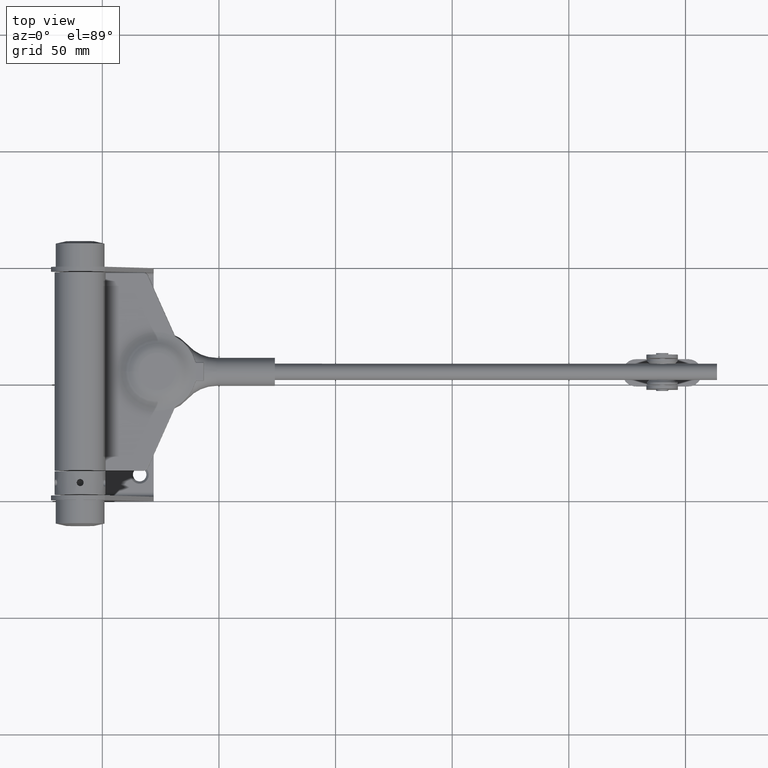
[diagram: clean part render]
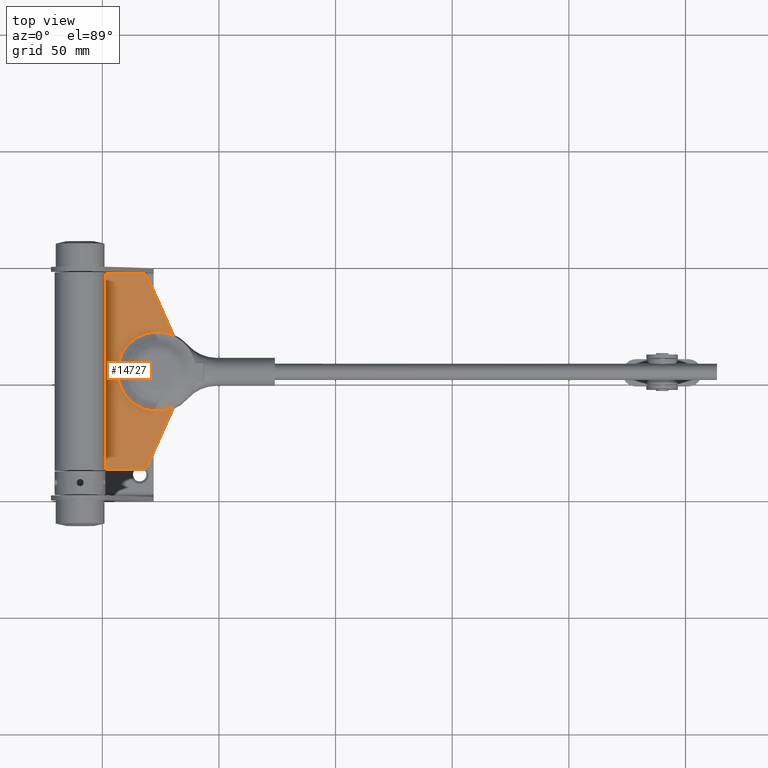
[diagram: same view with one face highlighted and labeled with its STEP entity id]
A machine part, top view. The second image highlights one B-rep face of the part: STEP entity #14727.
In plain terms, the highlighted planar face has unit normal (0, -0, -1).
Its self-contained STEP definition (entity closure, byte-faithful):
#87 = VERTEX_POINT ( 'NONE', #20719 ) ;
#1045 = AXIS2_PLACEMENT_3D ( 'NONE', #13610, #6369, #17702 ) ;
#1060 = CARTESIAN_POINT ( 'NONE',  ( -0.9999999999999940048, -15.46086696712055719, 40.06835147859833057 ) ) ;
#1087 = VERTEX_POINT ( 'NONE', #13590 ) ;
#1102 = CIRCLE ( 'NONE', #20969, 1.500000000000008216 ) ;
#1170 = DIRECTION ( 'NONE',  ( 0.000000000000000000, 0.000000000000000000, -1.000000000000000000 ) ) ;
#1296 = VERTEX_POINT ( 'NONE', #1060 ) ;
#1392 = VERTEX_POINT ( 'NONE', #8686 ) ;
#2375 = DIRECTION ( 'NONE',  ( 2.465190328815646565E-32, -2.070759876205143378E-30, 1.000000000000000000 ) ) ;
#2438 = LINE ( 'NONE', #18719, #6137 ) ;
#2527 = CIRCLE ( 'NONE', #22626, 1.500000000000008216 ) ;
#2885 = EDGE_CURVE ( 'NONE', #1296, #16686, #9705, .T. ) ;
#3300 = CARTESIAN_POINT ( 'NONE',  ( -1.000000000000000888, -16.56083667958944972, 42.31336075066202795 ) ) ;
#3467 = DIRECTION ( 'NONE',  ( 0.000000000000000000, 0.000000000000000000, -1.000000000000000000 ) ) ;
#3677 = ORIENTED_EDGE ( 'NONE', *, *, #21957, .T. ) ;
#3819 = VERTEX_POINT ( 'NONE', #16738 ) ;
#4432 = EDGE_LOOP ( 'NONE', ( #19809, #10465, #9906, #11832, #15796, #22478, #16870, #22665, #19387, #3677 ) ) ;
#4441 = PLANE ( 'NONE',  #1045 ) ;
#5785 = CARTESIAN_POINT ( 'NONE',  ( -1.000000000000000888, -5.221613387282787677, 44.65433429618172312 ) ) ;
#6137 = VECTOR ( 'NONE', #2375, 1000.000000000000000 ) ;
#6151 = CARTESIAN_POINT ( 'NONE',  ( -1.000000000000091038, -41.11331553386013837, 28.57339928453205147 ) ) ;
#6369 = DIRECTION ( 'NONE',  ( 1.000000000000000000, 3.769267568384171061E-30, -2.465190328815646565E-32 ) ) ;
#6702 = LINE ( 'NONE', #5785, #10416 ) ;
#7292 = EDGE_CURVE ( 'NONE', #3819, #1087, #2438, .T. ) ;
#7588 = EDGE_CURVE ( 'NONE', #16686, #8538, #10166, .T. ) ;
#7914 = EDGE_CURVE ( 'NONE', #14262, #1392, #6702, .T. ) ;
#8068 = CARTESIAN_POINT ( 'NONE',  ( -1.000000000000000888, 15.53864412315589760, 40.03188702134305288 ) ) ;
#8211 = DIRECTION ( 'NONE',  ( 0.000000000000000000, 1.387778780781438102E-14, -1.000000000000000000 ) ) ;
#8538 = VERTEX_POINT ( 'NONE', #8068 ) ;
#8686 = CARTESIAN_POINT ( 'NONE',  ( -1.000000000000000888, -15.53864412315589227, 40.03188702134303867 ) ) ;
#8707 = DIRECTION ( 'NONE',  ( 1.000000000000000000, 3.769267568384171061E-30, -2.465190328815646565E-32 ) ) ;
#9502 = CARTESIAN_POINT ( 'NONE',  ( -1.000000000000000888, 41.99999999999999289, 10.95445115010337034 ) ) ;
#9615 = VECTOR ( 'NONE', #15096, 1000.000000000000000 ) ;
#9705 = CIRCLE ( 'NONE', #23385, 17.00000000000011369 ) ;
#9906 = ORIENTED_EDGE ( 'NONE', *, *, #18786, .T. ) ;
#9972 = DIRECTION ( 'NONE',  ( 3.432777532875804981E-30, 0.9125894917275187979, -0.4088770225734248420 ) ) ;
#10166 = CIRCLE ( 'NONE', #16091, 2.500000000000015987 ) ;
#10416 = VECTOR ( 'NONE', #10995, 999.9999999999997726 ) ;
#10465 = ORIENTED_EDGE ( 'NONE', *, *, #7292, .T. ) ;
#10619 = LINE ( 'NONE', #20900, #13456 ) ;
#10995 = DIRECTION ( 'NONE',  ( 3.426614557053765826E-30, 0.9125894917275187979, 0.4088770225734248420 ) ) ;
#11733 = CARTESIAN_POINT ( 'NONE',  ( -1.000000000000000888, 42.49999999999999289, 10.95445115010337034 ) ) ;
#11832 = ORIENTED_EDGE ( 'NONE', *, *, #7914, .T. ) ;
#11841 = VERTEX_POINT ( 'NONE', #18079 ) ;
#13084 = EDGE_CURVE ( 'NONE', #8538, #87, #10619, .T. ) ;
#13146 = DIRECTION ( 'NONE',  ( -2.465190328815646565E-32, 2.070759876205143378E-30, -1.000000000000000000 ) ) ;
#13456 = VECTOR ( 'NONE', #9972, 999.9999999999997726 ) ;
#13590 = CARTESIAN_POINT ( 'NONE',  ( -1.000000000000007772, -42.00000000000000000, 27.20451504694077016 ) ) ;
#13610 = CARTESIAN_POINT ( 'NONE',  ( -1.000000000000091038, 1.214306433183764966E-14, 33.00000000000019185 ) ) ;
#13873 = VECTOR ( 'NONE', #13146, 1000.000000000000000 ) ;
#13896 = CIRCLE ( 'NONE', #22349, 2.500000000000015987 ) ;
#14262 = VERTEX_POINT ( 'NONE', #6151 ) ;
#14378 = DIRECTION ( 'NONE',  ( 1.000000000000000000, 3.769267568384171061E-30, -2.465190328815646565E-32 ) ) ;
#14727 = ADVANCED_FACE ( 'NONE', ( #17131 ), #4441, .F. ) ;
#14861 = CARTESIAN_POINT ( 'NONE',  ( -1.000000000000007772, -40.50000000000000000, 27.20451504694077016 ) ) ;
#15096 = DIRECTION ( 'NONE',  ( -3.769267568384192781E-30, -1.000000000000000000, 2.070759876205157040E-30 ) ) ;
#15443 = DIRECTION ( 'NONE',  ( 1.000000000000000000, 3.769267568384171061E-30, -2.465190328815646565E-32 ) ) ;
#15615 = LINE ( 'NONE', #11733, #9615 ) ;
#15796 = ORIENTED_EDGE ( 'NONE', *, *, #21345, .T. ) ;
#16091 = AXIS2_PLACEMENT_3D ( 'NONE', #21812, #14378, #3467 ) ;
#16350 = VERTEX_POINT ( 'NONE', #19404 ) ;
#16620 = DIRECTION ( 'NONE',  ( -1.000000000000000000, -3.769267568384171061E-30, 2.465190328815646565E-32 ) ) ;
#16686 = VERTEX_POINT ( 'NONE', #23277 ) ;
#16738 = CARTESIAN_POINT ( 'NONE',  ( -1.000000000000000888, -42.00000000000000711, 10.95445115010337034 ) ) ;
#16870 = ORIENTED_EDGE ( 'NONE', *, *, #7588, .T. ) ;
#17131 = FACE_OUTER_BOUND ( 'NONE', #4432, .T. ) ;
#17702 = DIRECTION ( 'NONE',  ( -2.465190328815646565E-32, 2.070759876205143378E-30, -1.000000000000000000 ) ) ;
#18079 = CARTESIAN_POINT ( 'NONE',  ( -1.000000000000000888, 41.99999999999999289, 10.95445115010337034 ) ) ;
#18168 = LINE ( 'NONE', #9502, #13873 ) ;
#18531 = DIRECTION ( 'NONE',  ( 0.000000000000000000, 4.625929269271460079E-15, -1.000000000000000000 ) ) ;
#18719 = CARTESIAN_POINT ( 'NONE',  ( -1.000000000000091038, -42.00000000000000000, 33.00000000000019185 ) ) ;
#18786 = EDGE_CURVE ( 'NONE', #1087, #14262, #1102, .T. ) ;
#18838 = CARTESIAN_POINT ( 'NONE',  ( -1.000000000000007772, 40.50000000000000000, 27.20451504694071687 ) ) ;
#18930 = EDGE_CURVE ( 'NONE', #87, #16350, #2527, .T. ) ;
#18998 = DIRECTION ( 'NONE',  ( -1.000000000000000000, -3.769267568384171061E-30, 2.465190328815646565E-32 ) ) ;
#19387 = ORIENTED_EDGE ( 'NONE', *, *, #18930, .T. ) ;
#19404 = CARTESIAN_POINT ( 'NONE',  ( -1.000000000000007772, 42.00000000000000000, 27.20451504694071687 ) ) ;
#19809 = ORIENTED_EDGE ( 'NONE', *, *, #21736, .T. ) ;
#20719 = CARTESIAN_POINT ( 'NONE',  ( -1.000000000000091038, 41.11331553386012416, 28.57339928453199818 ) ) ;
#20900 = CARTESIAN_POINT ( 'NONE',  ( -1.000000000000000888, 5.221613387282797447, 44.65433429618172312 ) ) ;
#20952 = DIRECTION ( 'NONE',  ( 0.000000000000000000, 2.084535939807347228E-30, -1.000000000000000000 ) ) ;
#20969 = AXIS2_PLACEMENT_3D ( 'NONE', #14861, #16620, #18531 ) ;
#21345 = EDGE_CURVE ( 'NONE', #1392, #1296, #13896, .T. ) ;
#21736 = EDGE_CURVE ( 'NONE', #11841, #3819, #15615, .T. ) ;
#21812 = CARTESIAN_POINT ( 'NONE',  ( -1.000000000000000888, 16.56083667958944972, 42.31336075066184321 ) ) ;
#21957 = EDGE_CURVE ( 'NONE', #16350, #11841, #18168, .T. ) ;
#22349 = AXIS2_PLACEMENT_3D ( 'NONE', #3300, #8707, #1170 ) ;
#22478 = ORIENTED_EDGE ( 'NONE', *, *, #2885, .T. ) ;
#22626 = AXIS2_PLACEMENT_3D ( 'NONE', #18838, #18998, #8211 ) ;
#22665 = ORIENTED_EDGE ( 'NONE', *, *, #13084, .T. ) ;
#22768 = CARTESIAN_POINT ( 'NONE',  ( -1.000000000000091038, 1.214306433183764966E-14, 33.00000000000019185 ) ) ;
#23277 = CARTESIAN_POINT ( 'NONE',  ( -0.9999999999999940048, 15.46086696712055897, 40.06835147859833057 ) ) ;
#23385 = AXIS2_PLACEMENT_3D ( 'NONE', #22768, #15443, #20952 ) ;